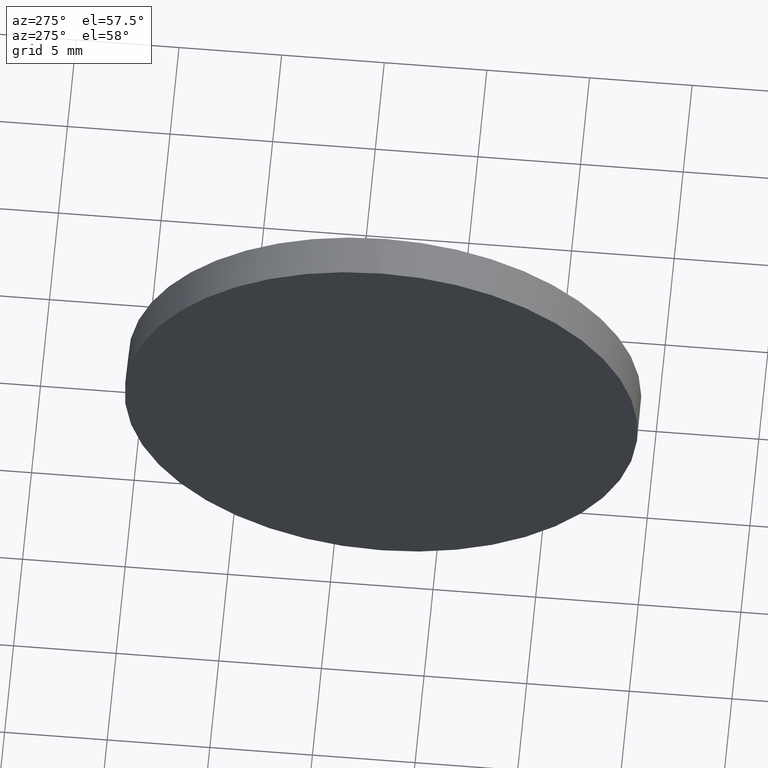
[diagram: clean part render]
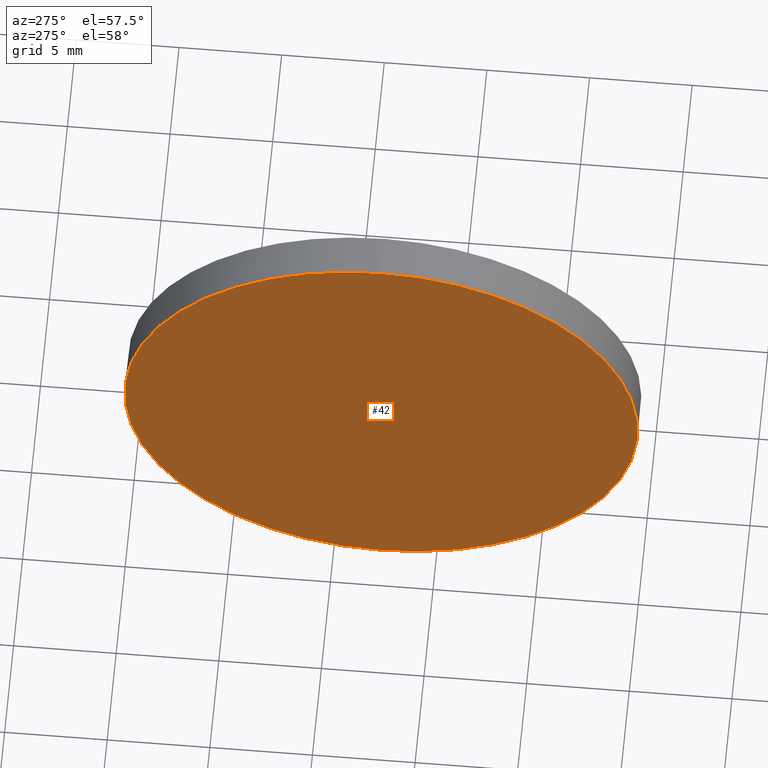
[diagram: same view with one face highlighted and labeled with its STEP entity id]
A machine part, auxiliary view. The second image highlights one B-rep face of the part: STEP entity #42.
In plain terms, the highlighted planar face has unit normal (1, 0, 0).
Its self-contained STEP definition (entity closure, byte-faithful):
#12 = DIRECTION ( 'NONE',  ( 0.0000000000000000000, 0.0000000000000000000, -1.000000000000000000 ) ) ;
#27 = DIRECTION ( 'NONE',  ( -1.000000000000000000, -0.0000000000000000000, -0.0000000000000000000 ) ) ;
#31 = CARTESIAN_POINT ( 'NONE',  ( 661.6944572841594000, 112.6777850517631800, 12.50000000000001100 ) ) ;
#42 = ADVANCED_FACE ( 'NONE', ( #174 ), #76, .F. ) ;
#59 = DIRECTION ( 'NONE',  ( 1.000000000000000000, 0.0000000000000000000, 0.0000000000000000000 ) ) ;
#60 = DIRECTION ( 'NONE',  ( 0.0000000000000000000, 0.0000000000000000000, 1.000000000000000000 ) ) ;
#61 = EDGE_CURVE ( 'NONE', #83, #149, #135, .T. ) ;
#67 = EDGE_CURVE ( 'NONE', #149, #83, #103, .T. ) ;
#76 = PLANE ( 'NONE',  #96 ) ;
#83 = VERTEX_POINT ( 'NONE', #31 ) ;
#88 = CARTESIAN_POINT ( 'NONE',  ( 661.6944572841594000, 112.6777850517631800, 0.0000000000000000000 ) ) ;
#96 = AXIS2_PLACEMENT_3D ( 'NONE', #88, #59, #12 ) ;
#99 = CARTESIAN_POINT ( 'NONE',  ( 661.6944572841594000, 112.6777850517631800, 0.0000000000000000000 ) ) ;
#103 = CIRCLE ( 'NONE', #112, 12.50000000000001100 ) ;
#105 = DIRECTION ( 'NONE',  ( -1.000000000000000000, -0.0000000000000000000, -0.0000000000000000000 ) ) ;
#112 = AXIS2_PLACEMENT_3D ( 'NONE', #99, #27, #60 ) ;
#122 = ORIENTED_EDGE ( 'NONE', *, *, #61, .T. ) ;
#124 = AXIS2_PLACEMENT_3D ( 'NONE', #170, #105, #167 ) ;
#125 = ORIENTED_EDGE ( 'NONE', *, *, #67, .T. ) ;
#135 = CIRCLE ( 'NONE', #124, 12.50000000000001100 ) ;
#149 = VERTEX_POINT ( 'NONE', #179 ) ;
#162 = EDGE_LOOP ( 'NONE', ( #122, #125 ) ) ;
#167 = DIRECTION ( 'NONE',  ( 0.0000000000000000000, 0.0000000000000000000, 1.000000000000000000 ) ) ;
#170 = CARTESIAN_POINT ( 'NONE',  ( 661.6944572841594000, 112.6777850517631800, 0.0000000000000000000 ) ) ;
#174 = FACE_OUTER_BOUND ( 'NONE', #162, .T. ) ;
#179 = CARTESIAN_POINT ( 'NONE',  ( 661.6944572841594000, 112.6777850517631800, -12.50000000000001100 ) ) ;